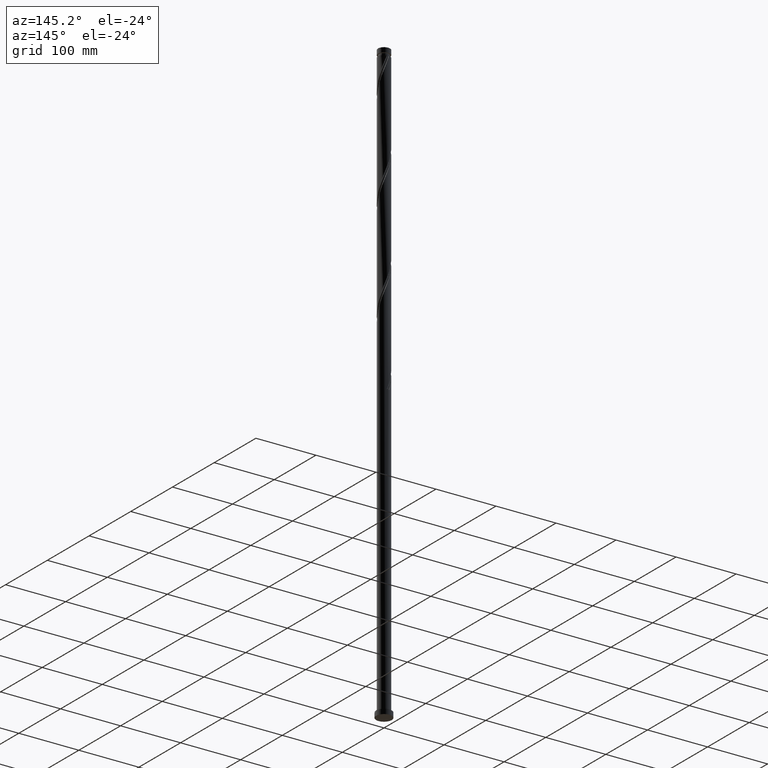
[diagram: clean part render]
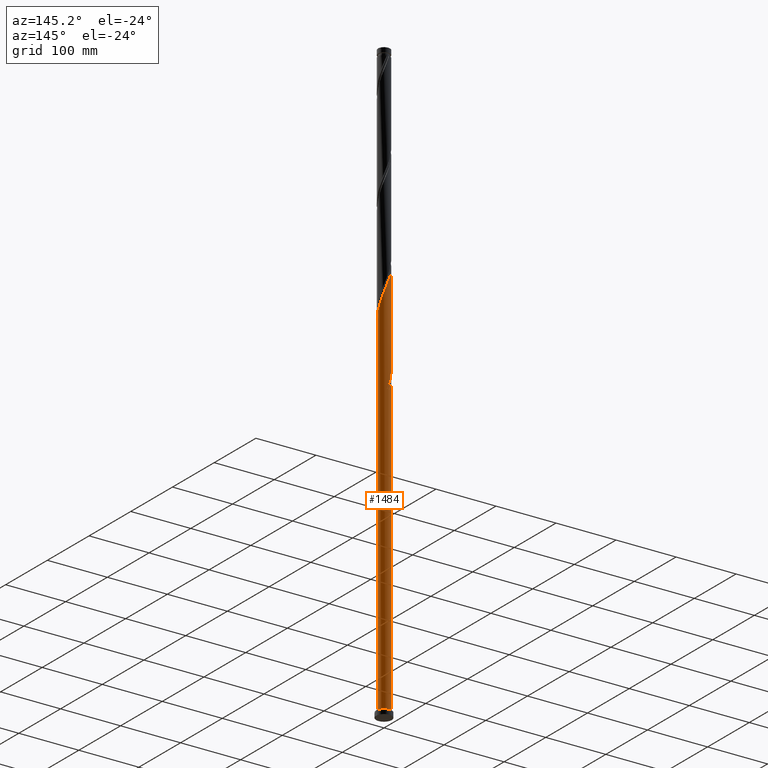
[diagram: same view with one face highlighted and labeled with its STEP entity id]
A machine part, auxiliary view. The second image highlights one B-rep face of the part: STEP entity #1484.
In plain terms, the highlighted cylindrical surface (edge-blend (fillet) strip) has radius 10 mm, axis along (-0, -0, -1).
Its self-contained STEP definition (entity closure, byte-faithful):
#1 = CARTESIAN_POINT ( 'NONE',  ( -7.902139297630669468, 6.178639849234801140, 673.6628201201460797 ) ) ;
#10 = DIRECTION ( 'NONE',  ( -0.000000000000000000, -0.000000000000000000, -1.000000000000000000 ) ) ;
#27 = CARTESIAN_POINT ( 'NONE',  ( 1.917712247535589665, 9.845901462098996859, 644.4961534534793373 ) ) ;
#53 = CARTESIAN_POINT ( 'NONE',  ( 10.00000000000001421, 9.552733732950904056E-15, 607.9328752480316780 ) ) ;
#58 = ORIENTED_EDGE ( 'NONE', *, *, #401, .F. ) ;
#66 = CARTESIAN_POINT ( 'NONE',  ( -1.917712247535578785, 9.845901462098982648, 498.6628201201463071 ) ) ;
#71 = EDGE_CURVE ( 'NONE', #1757, #1512, #418, .T. ) ;
#96 = CIRCLE ( 'NONE', #1487, 10.00000000000000178 ) ;
#101 = CARTESIAN_POINT ( 'NONE',  ( -10.00000000000000355, 6.770500033228993565E-14, 535.2260983255939664 ) ) ;
#120 = CARTESIAN_POINT ( 'NONE',  ( -10.00000000000001599, -9.254210803796187220E-15, 524.5995419146980794 ) ) ;
#159 = CARTESIAN_POINT ( 'NONE',  ( -9.956614419138690053, 1.218698147331992665, 531.9961534534796783 ) ) ;
#165 = CARTESIAN_POINT ( 'NONE',  ( -1.989974874213251033, 9.800000000000013145, 488.2461534534795646 ) ) ;
#172 = CARTESIAN_POINT ( 'NONE',  ( -1.989974874213251033, 9.800000000000013145, 488.2461534534795646 ) ) ;
#177 =( BOUNDED_CURVE ( )  B_SPLINE_CURVE ( 2, ( #1695, #1317, #2450, #159, #1884, #348, #912, #193, #947, #712, #1307, #700, #727, #525, #1493, #2200, #1074, #1647, #276, #66, #1236, #822, #725, #1460, #704 ),
 .UNSPECIFIED., .F., .T. ) 
 B_SPLINE_CURVE_WITH_KNOTS ( ( 3, 2, 2, 2, 2, 2, 2, 2, 2, 2, 2, 2, 3 ),
 ( 0.9295283537410736763, 0.9312500000000000222, 0.9375000000000000000, 0.9437499999999999778, 0.9499999999999999556, 0.9562500000000000444, 0.9625000000000000222, 0.9687500000000000000, 0.9749999999999999778, 0.9812499999999999556, 0.9875000000000000444, 0.9937500000000000222, 1.000000000000000000 ),
 .UNSPECIFIED. ) 
 CURVE ( )  GEOMETRIC_REPRESENTATION_ITEM ( )  RATIONAL_B_SPLINE_CURVE ( ( 0.9079722749902968681, 0.9083189438770071789, 0.9090909090909532475, 0.9062884852119784673, 0.9090909090909532475, 0.9062884852119784673, 0.9090909090909532475, 0.9062884852119784673, 0.9090909090909532475, 0.9062884852119784673, 0.9090909090909532475, 0.9062884852119784673, 0.9090909090909532475, 0.9062884852119784673, 0.9090909090909532475, 0.9062884852119784673, 0.9090909090909532475, 0.9062884852119784673, 0.9090909090909532475, 0.9062884852119784673, 0.9090909090909532475, 0.9062884852119784673, 0.9090909090909532475, 0.9062884852119784673, 0.9090909090909532475 ) ) 
 REPRESENTATION_ITEM ( '' )  );
#188 = CARTESIAN_POINT ( 'NONE',  ( 8.318131025341649831, 5.606076356147839057, 623.6628201201463071 ) ) ;
#193 = CARTESIAN_POINT ( 'NONE',  ( -9.092704585021285979, 4.235813876369422637, 523.6628201201461934 ) ) ;
#200 = CARTESIAN_POINT ( 'NONE',  ( -8.336771183575212518, 5.522521727681138692, 675.7461534534794509 ) ) ;
#212 = CARTESIAN_POINT ( 'NONE',  ( -1.218698147331984893, 9.956614419138704264, 652.8294867868129359 ) ) ;
#226 = CARTESIAN_POINT ( 'NONE',  ( -6.222187493342498321, 7.828434249432799419, 667.4128201201460797 ) ) ;
#235 = DIRECTION ( 'NONE',  ( -0.000000000000000000, -0.000000000000000000, -1.000000000000000000 ) ) ;
#239 = CARTESIAN_POINT ( 'NONE',  ( 9.990646392723412816, 0.4324172239434397325, 609.0794867868129359 ) ) ;
#272 = CARTESIAN_POINT ( 'NONE',  ( 0.000000000000000000, 0.000000000000000000, 488.2461534534796783 ) ) ;
#276 = CARTESIAN_POINT ( 'NONE',  ( -2.676026301552623554, 9.635293624659222900, 500.7461534534796215 ) ) ;
#348 = CARTESIAN_POINT ( 'NONE',  ( -9.643385580861313144, 2.761251601094514285, 527.8294867868129359 ) ) ;
#375 = CARTESIAN_POINT ( 'NONE',  ( -5.606076356147837281, 8.318131025341649831, 665.3294867868129359 ) ) ;
#386 = CARTESIAN_POINT ( 'NONE',  ( 10.00000000000001421, 9.552733732950904056E-15, 607.9328752480316780 ) ) ;
#395 = CYLINDRICAL_SURFACE ( 'NONE', #853, 10.00000000000000178 ) ;
#399 = CARTESIAN_POINT ( 'NONE',  ( -9.845901462098996859, 1.917712247535583447, 686.1628201201461934 ) ) ;
#401 = EDGE_CURVE ( 'NONE', #1512, #2241, #177, .T. ) ;
#412 = CARTESIAN_POINT ( 'NONE',  ( -6.838298630537162914, 7.338737473523952559, 669.4961534534793373 ) ) ;
#417 =( BOUNDED_CURVE ( )  B_SPLINE_CURVE ( 2, ( #53, #2066, #239, #1879, #998, #2257, #1559, #792, #2120, #188, #1919, #2311, #1156, #425, #1906, #1360, #2267, #1547, #1374, #27, #982, #2107, #808, #212, #2296, #1324, #1335, #1934, #559, #375, #226, #412, #969, #1, #200, #583, #955, #1347, #751, #399, #1753, #549, #1518 ),
 .UNSPECIFIED., .F., .T. ) 
 B_SPLINE_CURVE_WITH_KNOTS ( ( 3, 2, 2, 2, 2, 2, 2, 2, 2, 2, 2, 2, 2, 2, 2, 2, 2, 2, 2, 2, 2, 3 ),
 ( 0.1795283537410735653, 0.1812500000000000222, 0.1875000000000000000, 0.1937499999999999778, 0.1999999999999999556, 0.2062500000000000444, 0.2125000000000000222, 0.2187500000000000000, 0.2249999999999999778, 0.2312499999999999556, 0.2375000000000000444, 0.2437500000000000222, 0.2500000000000000000, 0.2562499999999999778, 0.2624999999999999556, 0.2687500000000000444, 0.2750000000000000222, 0.2812500000000000000, 0.2874999999999999778, 0.2937499999999999556, 0.3000000000000000444, 0.3045283537410736208 ),
 .UNSPECIFIED. ) 
 CURVE ( )  GEOMETRIC_REPRESENTATION_ITEM ( )  RATIONAL_B_SPLINE_CURVE ( ( 0.9079722749903023082, 0.9083189438770126189, 0.9090909090909586876, 0.9062884852119839074, 0.9090909090909586876, 0.9062884852119839074, 0.9090909090909586876, 0.9062884852119839074, 0.9090909090909586876, 0.9062884852119839074, 0.9090909090909586876, 0.9062884852119839074, 0.9090909090909586876, 0.9062884852119839074, 0.9090909090909586876, 0.9062884852119839074, 0.9090909090909586876, 0.9062884852119839074, 0.9090909090909586876, 0.9062884852119839074, 0.9090909090909586876, 0.9062884852119839074, 0.9090909090909586876, 0.9062884852119839074, 0.9090909090909586876, 0.9062884852119839074, 0.9090909090909586876, 0.9062884852119839074, 0.9090909090909586876, 0.9062884852119839074, 0.9090909090909586876, 0.9062884852119839074, 0.9090909090909586876, 0.9062884852119839074, 0.9090909090909586876, 0.9062884852119839074, 0.9090909090909586876, 0.9062884852119839074, 0.9090909090909586876, 0.9062884852119839074, 0.9090909090909586876, 0.9070604504259299761, 0.9079722749903023082 ) ) 
 REPRESENTATION_ITEM ( '' )  );
#418 = LINE ( 'NONE', #987, #2344 ) ;
#425 = CARTESIAN_POINT ( 'NONE',  ( 6.178639849234798476, 7.902139297630671244, 631.9961534534793373 ) ) ;
#506 = EDGE_CURVE ( 'NONE', #553, #1757, #417, .T. ) ;
#509 = CARTESIAN_POINT ( 'NONE',  ( -6.222187493342498321, 7.828434249432799419, 500.7461534534795078 ) ) ;
#525 = CARTESIAN_POINT ( 'NONE',  ( -6.178639849234791370, 7.902139297630660586, 511.1628201201462502 ) ) ;
#549 = CARTESIAN_POINT ( 'NONE',  ( -10.00000000000002309, 0.5697373744642991733, 689.7543200630202591 ) ) ;
#553 = VERTEX_POINT ( 'NONE', #386 ) ;
#557 = DIRECTION ( 'NONE',  ( -0.000000000000000000, -0.000000000000000000, -1.000000000000000000 ) ) ;
#559 = CARTESIAN_POINT ( 'NONE',  ( -4.920945116258632623, 8.705417805181475899, 663.2461534534794509 ) ) ;
#564 = EDGE_LOOP ( 'NONE', ( #1731, #2084, #2355, #1563, #1202, #2325, #58, #1772 ) ) ;
#571 = EDGE_CURVE ( 'NONE', #784, #798, #96, .T. ) ;
#572 = DIRECTION ( 'NONE',  ( 0.000000000000000000, 0.000000000000000000, 1.000000000000000000 ) ) ;
#583 = CARTESIAN_POINT ( 'NONE',  ( -8.771403069519758233, 4.866403606127474468, 677.8294867868127085 ) ) ;
#637 = CARTESIAN_POINT ( 'NONE',  ( -10.00000000000000178, 0.000000000000000000, 1000.000000000000000 ) ) ;
#669 =( BOUNDED_CURVE ( )  B_SPLINE_CURVE ( 2, ( #165, #2403, #1483, #872, #1110, #1462, #509, #917, #1275, #1088, #1839, #1311, #2057, #1660, #2413, #1099, #907, #1120, #120 ),
 .UNSPECIFIED., .F., .T. ) 
 B_SPLINE_CURVE_WITH_KNOTS ( ( 3, 2, 2, 2, 2, 2, 2, 2, 2, 3 ),
 ( 0.000000000000000000, 0.006249999999999977796, 0.01249999999999995559, 0.01875000000000004441, 0.02500000000000002220, 0.03125000000000000000, 0.03749999999999997780, 0.04374999999999995559, 0.05000000000000004441, 0.05452835374107316280 ),
 .UNSPECIFIED. ) 
 CURVE ( )  GEOMETRIC_REPRESENTATION_ITEM ( )  RATIONAL_B_SPLINE_CURVE ( ( 0.9090909090909586876, 0.9062884852119839074, 0.9090909090909586876, 0.9062884852119839074, 0.9090909090909586876, 0.9062884852119839074, 0.9090909090909586876, 0.9062884852119839074, 0.9090909090909586876, 0.9062884852119839074, 0.9090909090909586876, 0.9062884852119839074, 0.9090909090909586876, 0.9062884852119839074, 0.9090909090909586876, 0.9062884852119839074, 0.9090909090909586876, 0.9070604504259301981, 0.9079722749903020862 ) ) 
 REPRESENTATION_ITEM ( '' )  );
#688 = AXIS2_PLACEMENT_3D ( 'NONE', #272, #1221, #1969 ) ;
#700 = CARTESIAN_POINT ( 'NONE',  ( -7.338737473523941901, 6.838298630537155809, 515.3294867868129359 ) ) ;
#704 = CARTESIAN_POINT ( 'NONE',  ( 1.989974874213254585, 9.799999999999997158, 488.2461534534795078 ) ) ;
#712 = CARTESIAN_POINT ( 'NONE',  ( -8.318131025341637397, 5.606076356147831952, 519.4961534534794509 ) ) ;
#725 = CARTESIAN_POINT ( 'NONE',  ( 0.4324172239434426745, 9.990646392723402158, 492.4128201201461366 ) ) ;
#727 = CARTESIAN_POINT ( 'NONE',  ( -6.758688661379365747, 7.370218964083908197, 513.2461534534795646 ) ) ;
#751 = CARTESIAN_POINT ( 'NONE',  ( -9.635293624659231781, 2.676026301552627995, 684.0794867868128222 ) ) ;
#784 = VERTEX_POINT ( 'NONE', #2353 ) ;
#792 = CARTESIAN_POINT ( 'NONE',  ( 9.092704585021301966, 4.235813876369419084, 619.4961534534795646 ) ) ;
#798 = VERTEX_POINT ( 'NONE', #1226 ) ;
#808 = CARTESIAN_POINT ( 'NONE',  ( -0.4324172239434393439, 9.990646392723412816, 650.7461534534794509 ) ) ;
#822 = CARTESIAN_POINT ( 'NONE',  ( -0.3538636994451062057, 10.02467836630811426, 494.4961534534795078 ) ) ;
#853 = AXIS2_PLACEMENT_3D ( 'NONE', #2254, #10, #2307 ) ;
#872 = CARTESIAN_POINT ( 'NONE',  ( -4.235813876369424413, 9.092704585021298413, 494.4961534534793941 ) ) ;
#907 = CARTESIAN_POINT ( 'NONE',  ( -9.935289914203563555, 1.135787973490345548, 521.5794867868127085 ) ) ;
#912 = CARTESIAN_POINT ( 'NONE',  ( -9.368045082941300450, 3.498532738731968905, 525.7461534534795646 ) ) ;
#917 = CARTESIAN_POINT ( 'NONE',  ( -6.838298630537162914, 7.338737473523952559, 502.8294867868129359 ) ) ;
#947 = CARTESIAN_POINT ( 'NONE',  ( -8.705417805181461688, 4.920945116258628182, 521.5794867868127085 ) ) ;
#955 = CARTESIAN_POINT ( 'NONE',  ( -9.098044428369613357, 4.150371980848573727, 679.9128201201460797 ) ) ;
#967 = CIRCLE ( 'NONE', #688, 10.00000000000000178 ) ;
#969 = CARTESIAN_POINT ( 'NONE',  ( -7.370218964083914415, 6.758688661379373741, 671.5794867868127085 ) ) ;
#982 = CARTESIAN_POINT ( 'NONE',  ( 1.135787973490348435, 9.935289914203565331, 646.5794867868127085 ) ) ;
#987 = CARTESIAN_POINT ( 'NONE',  ( -10.00000000000000178, 0.000000000000000000, 1000.000000000000000 ) ) ;
#998 = CARTESIAN_POINT ( 'NONE',  ( 9.800000000000013145, 1.989974874213251477, 613.2461534534793373 ) ) ;
#1074 = CARTESIAN_POINT ( 'NONE',  ( -4.150371980848566622, 9.098044428369604475, 504.9128201201462502 ) ) ;
#1088 = CARTESIAN_POINT ( 'NONE',  ( -7.902139297630669468, 6.178639849234801140, 506.9961534534793941 ) ) ;
#1099 = CARTESIAN_POINT ( 'NONE',  ( -9.845901462098996859, 1.917712247535583447, 519.4961534534794509 ) ) ;
#1110 = CARTESIAN_POINT ( 'NONE',  ( -4.920945116258632623, 8.705417805181475899, 496.5794867868127653 ) ) ;
#1120 = CARTESIAN_POINT ( 'NONE',  ( -10.00000000000001243, 0.5697373744643564608, 523.0876533963530619 ) ) ;
#1143 = CARTESIAN_POINT ( 'NONE',  ( 0.000000000000000000, 0.000000000000000000, 8.000000000000000000 ) ) ;
#1156 = CARTESIAN_POINT ( 'NONE',  ( 6.758688661379377294, 7.370218964083912638, 629.9128201201461934 ) ) ;
#1179 = LINE ( 'NONE', #637, #1372 ) ;
#1202 = ORIENTED_EDGE ( 'NONE', *, *, #1955, .F. ) ;
#1221 = DIRECTION ( 'NONE',  ( -3.081487911019574562E-30, -1.387778780781445044E-14, -1.000000000000000000 ) ) ;
#1226 = CARTESIAN_POINT ( 'NONE',  ( -10.00000000000000178, 0.000000000000000000, 8.000000000000000000 ) ) ;
#1236 = CARTESIAN_POINT ( 'NONE',  ( -1.135787973490342662, 9.935289914203547568, 496.5794867868128790 ) ) ;
#1275 = CARTESIAN_POINT ( 'NONE',  ( -7.370218964083914415, 6.758688661379373741, 504.9128201201463071 ) ) ;
#1307 = CARTESIAN_POINT ( 'NONE',  ( -7.828434249432788761, 6.222187493342492104, 517.4128201201461934 ) ) ;
#1311 = CARTESIAN_POINT ( 'NONE',  ( -8.771403069519758233, 4.866403606127474468, 511.1628201201461366 ) ) ;
#1317 = CARTESIAN_POINT ( 'NONE',  ( -10.00000000000000178, 0.2163097758064046472, 534.6520860155277433 ) ) ;
#1324 = CARTESIAN_POINT ( 'NONE',  ( -2.761251601094515173, 9.643385580861325579, 656.9961534534794509 ) ) ;
#1335 = CARTESIAN_POINT ( 'NONE',  ( -3.498532738731971126, 9.368045082941311108, 659.0794867868127085 ) ) ;
#1347 = CARTESIAN_POINT ( 'NONE',  ( -9.424685787219470257, 3.434340355569674319, 681.9961534534795646 ) ) ;
#1360 = CARTESIAN_POINT ( 'NONE',  ( 4.866403606127479797, 8.771403069519754681, 636.1628201201463071 ) ) ;
#1372 = VECTOR ( 'NONE', #235, 1000.000000000000000 ) ;
#1374 = CARTESIAN_POINT ( 'NONE',  ( 2.676026301552629771, 9.635293624659231781, 642.4128201201461934 ) ) ;
#1390 = VERTEX_POINT ( 'NONE', #172 ) ;
#1460 = CARTESIAN_POINT ( 'NONE',  ( 1.218698147331991777, 9.956614419138690053, 490.3294867868129359 ) ) ;
#1462 = CARTESIAN_POINT ( 'NONE',  ( -5.606076356147837281, 8.318131025341649831, 498.6628201201461934 ) ) ;
#1483 = CARTESIAN_POINT ( 'NONE',  ( -3.498532738731971126, 9.368045082941311108, 492.4128201201461934 ) ) ;
#1484 = ADVANCED_FACE ( 'NONE', ( #2454 ), #395, .T. ) ;
#1487 = AXIS2_PLACEMENT_3D ( 'NONE', #1143, #572, #1740 ) ;
#1488 = VECTOR ( 'NONE', #557, 1000.000000000000000 ) ;
#1493 = CARTESIAN_POINT ( 'NONE',  ( -5.522521727681128034, 8.336771183575205413, 509.0794867868130495 ) ) ;
#1512 = VERTEX_POINT ( 'NONE', #101 ) ;
#1518 = CARTESIAN_POINT ( 'NONE',  ( -10.00000000000001599, -9.254210803796187220E-15, 691.2662085813649355 ) ) ;
#1547 = CARTESIAN_POINT ( 'NONE',  ( 3.434340355569672987, 9.424685787219470257, 640.3294867868129359 ) ) ;
#1559 = CARTESIAN_POINT ( 'NONE',  ( 9.368045082941311108, 3.498532738731969349, 617.4128201201459660 ) ) ;
#1563 = ORIENTED_EDGE ( 'NONE', *, *, #2078, .F. ) ;
#1647 = CARTESIAN_POINT ( 'NONE',  ( -3.434340355569668546, 9.424685787219459598, 502.8294867868129359 ) ) ;
#1660 = CARTESIAN_POINT ( 'NONE',  ( -9.424685787219470257, 3.434340355569674319, 515.3294867868129359 ) ) ;
#1689 = LINE ( 'NONE', #2255, #1488 ) ;
#1695 = CARTESIAN_POINT ( 'NONE',  ( -10.00000000000000355, 6.770500033228993565E-14, 535.2260983255939664 ) ) ;
#1731 = ORIENTED_EDGE ( 'NONE', *, *, #506, .F. ) ;
#1740 = DIRECTION ( 'NONE',  ( 1.000000000000000000, 0.000000000000000000, 0.000000000000000000 ) ) ;
#1744 = DIRECTION ( 'NONE',  ( -0.000000000000000000, -0.000000000000000000, -1.000000000000000000 ) ) ;
#1753 = CARTESIAN_POINT ( 'NONE',  ( -9.935289914203563555, 1.135787973490345548, 688.2461534534795646 ) ) ;
#1757 = VERTEX_POINT ( 'NONE', #2418 ) ;
#1772 = ORIENTED_EDGE ( 'NONE', *, *, #71, .F. ) ;
#1839 = CARTESIAN_POINT ( 'NONE',  ( -8.336771183575212518, 5.522521727681138692, 509.0794867868128222 ) ) ;
#1879 = CARTESIAN_POINT ( 'NONE',  ( 9.956614419138704264, 1.218698147331985560, 611.1628201201460797 ) ) ;
#1884 = CARTESIAN_POINT ( 'NONE',  ( -9.799999999999997158, 1.989974874213252809, 529.9128201201461934 ) ) ;
#1906 = CARTESIAN_POINT ( 'NONE',  ( 5.522521727681138692, 8.336771183575210742, 634.0794867868128222 ) ) ;
#1910 = VERTEX_POINT ( 'NONE', #2211 ) ;
#1919 = CARTESIAN_POINT ( 'NONE',  ( 7.828434249432801195, 6.222187493342497433, 625.7461534534793373 ) ) ;
#1934 = CARTESIAN_POINT ( 'NONE',  ( -4.235813876369424413, 9.092704585021298413, 661.1628201201464208 ) ) ;
#1955 = EDGE_CURVE ( 'NONE', #1390, #1910, #669, .T. ) ;
#1969 = DIRECTION ( 'NONE',  ( 0.000000000000000000, 1.000000000000000000, -1.110223024625156383E-14 ) ) ;
#2057 = CARTESIAN_POINT ( 'NONE',  ( -9.098044428369613357, 4.150371980848573727, 513.2461534534793373 ) ) ;
#2066 = CARTESIAN_POINT ( 'NONE',  ( 10.00000000000001421, 0.2163097758063881049, 608.5068875580980148 ) ) ;
#2078 = EDGE_CURVE ( 'NONE', #1910, #798, #1179, .T. ) ;
#2084 = ORIENTED_EDGE ( 'NONE', *, *, #2382, .T. ) ;
#2107 = CARTESIAN_POINT ( 'NONE',  ( 0.3538636994451059281, 10.02467836630812492, 648.6628201201460797 ) ) ;
#2120 = CARTESIAN_POINT ( 'NONE',  ( 8.705417805181475899, 4.920945116258629959, 621.5794867868128222 ) ) ;
#2170 = CARTESIAN_POINT ( 'NONE',  ( 1.989974874213254585, 9.799999999999997158, 488.2461534534795646 ) ) ;
#2200 = CARTESIAN_POINT ( 'NONE',  ( -4.866403606127465586, 8.771403069519749351, 506.9961534534795078 ) ) ;
#2211 = CARTESIAN_POINT ( 'NONE',  ( -10.00000000000001599, -9.254210803796187220E-15, 524.5995419146980794 ) ) ;
#2224 = EDGE_CURVE ( 'NONE', #1390, #2241, #967, .T. ) ;
#2241 = VERTEX_POINT ( 'NONE', #2170 ) ;
#2254 = CARTESIAN_POINT ( 'NONE',  ( 0.000000000000000000, 0.000000000000000000, 1000.000000000000000 ) ) ;
#2255 = CARTESIAN_POINT ( 'NONE',  ( 10.00000000000000178, 1.224646799147353454E-15, 1000.000000000000000 ) ) ;
#2257 = CARTESIAN_POINT ( 'NONE',  ( 9.643385580861325579, 2.761251601094518282, 615.3294867868128222 ) ) ;
#2267 = CARTESIAN_POINT ( 'NONE',  ( 4.150371980848576392, 9.098044428369609804, 638.2461534534794509 ) ) ;
#2296 = CARTESIAN_POINT ( 'NONE',  ( -1.989974874213251033, 9.800000000000013145, 654.9128201201459660 ) ) ;
#2307 = DIRECTION ( 'NONE',  ( -1.000000000000000000, 0.000000000000000000, 0.000000000000000000 ) ) ;
#2311 = CARTESIAN_POINT ( 'NONE',  ( 7.338737473523957888, 6.838298630537159362, 627.8294867868125948 ) ) ;
#2325 = ORIENTED_EDGE ( 'NONE', *, *, #2224, .T. ) ;
#2344 = VECTOR ( 'NONE', #1744, 1000.000000000000000 ) ;
#2353 = CARTESIAN_POINT ( 'NONE',  ( 10.00000000000000178, 1.224646799147353454E-15, 8.000000000000000000 ) ) ;
#2355 = ORIENTED_EDGE ( 'NONE', *, *, #571, .T. ) ;
#2382 = EDGE_CURVE ( 'NONE', #553, #784, #1689, .T. ) ;
#2403 = CARTESIAN_POINT ( 'NONE',  ( -2.761251601094515173, 9.643385580861325579, 490.3294867868128222 ) ) ;
#2413 = CARTESIAN_POINT ( 'NONE',  ( -9.635293624659231781, 2.676026301552627995, 517.4128201201461934 ) ) ;
#2418 = CARTESIAN_POINT ( 'NONE',  ( -10.00000000000001599, -9.254210803796187220E-15, 691.2662085813649355 ) ) ;
#2450 = CARTESIAN_POINT ( 'NONE',  ( -9.990646392723402158, 0.4324172239434433962, 534.0794867868129359 ) ) ;
#2454 = FACE_OUTER_BOUND ( 'NONE', #564, .T. ) ;